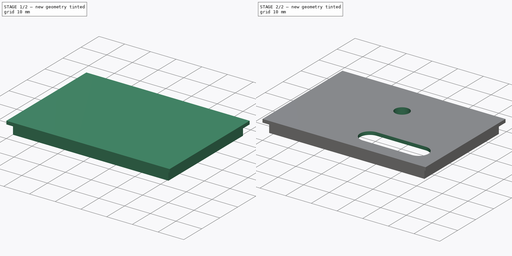
[diagram: build sequence overview — one tinted view per stage of 2, left to right]
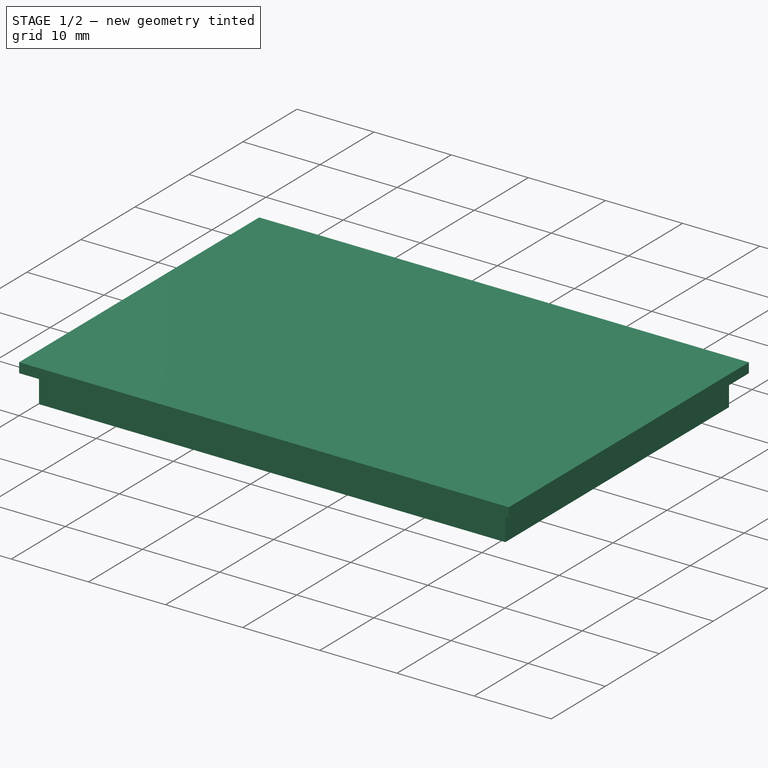
[diagram: stage 1 of 2 — iso view after this stage's code; geometry added in this stage tinted green]
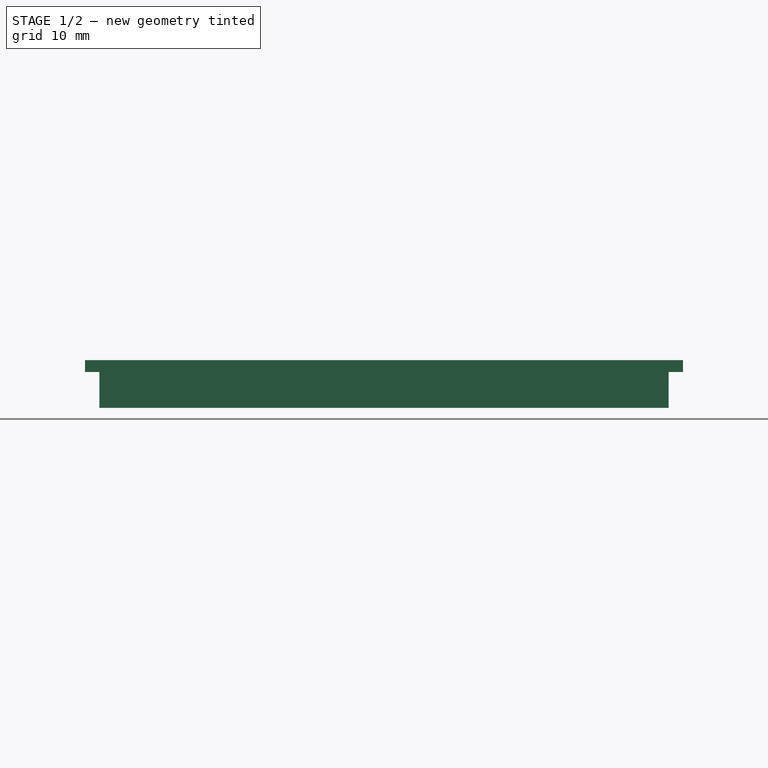
[diagram: stage 1 of 2 — front view after this stage's code; geometry added in this stage tinted green]
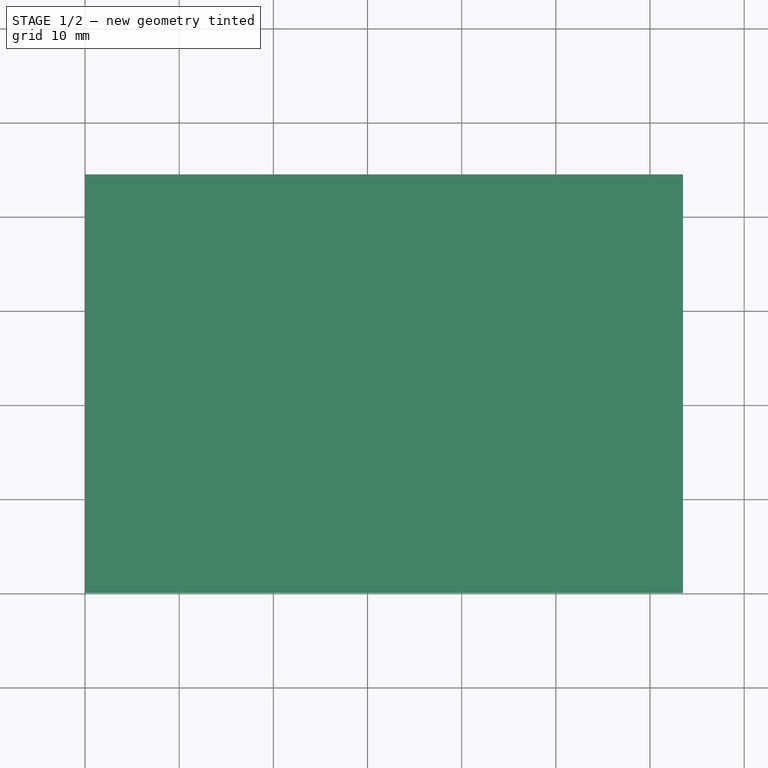
[diagram: stage 1 of 2 — top view after this stage's code; geometry added in this stage tinted green]
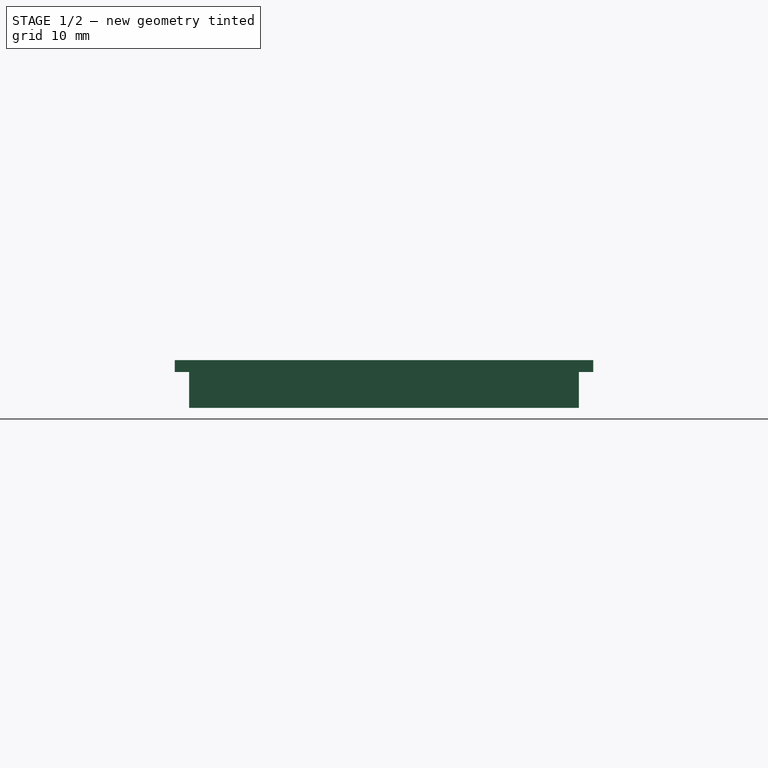
[diagram: stage 1 of 2 — right view after this stage's code; geometry added in this stage tinted green]
FCSTD DOCUMENT  (FreeCAD 0.18R4 (GitTag))
Label: BluetoothLightControlTop
License: All rights reserved
LicenseURL: http://en.wikipedia.org/wiki/All_rights_reserved
objects: Sketcher::SketchObject×4, PartDesign::Pad×3, PartDesign::Pocket×1, PartDesign::Body×1
note: 13 computed .brp shape members not serialized (recipe doc carries the construction recipe); baked Part::Feature solids carry a one-line shape summary decoded from their .brp

FEATURE [Sketcher::SketchObject] Sketch
  MapMode = 5
  Support = -> [XY_Plane]
  sketch-geometry (4):
    g0: LineSegment StartX=0 StartY=0 StartZ=0 EndX=63.5 EndY=0 EndZ=0
    g1: LineSegment StartX=63.5 StartY=0 StartZ=0 EndX=63.5 EndY=44.45 EndZ=0
    g2: LineSegment StartX=63.5 StartY=44.45 StartZ=0 EndX=0 EndY=44.45 EndZ=0
    g3: LineSegment StartX=0 StartY=44.45 StartZ=0 EndX=0 EndY=0 EndZ=0
  constraints (11):
    c: Coincident(g0,g1)
    c: Coincident(g1,g2)
    c: Coincident(g2,g3)
    c: Coincident(g3,g0)
    c: Horizontal(g0)
    c: Horizontal(g2)
    c: Vertical(g1)
    c: Vertical(g3)
    c: Coincident(g0,g-1)
    c: DistanceX(g2,g2) = 63.5
    c: DistanceY(g1,g1) = 44.45
FEATURE [PartDesign::Pad] Pad
  Length = 1.27
  Length2 = 100.076
  Profile = -> Sketch
  Type = 0
FEATURE [Sketcher::SketchObject] Sketch001
  MapMode = 5
  Placement = pos=(0,0,0) rot=(1,0,0;3.14159rad)
  Support = -> [Pad]
  sketch-geometry (8):
    g0: LineSegment StartX=1.524 StartY=-1.524 StartZ=0 EndX=61.976 EndY=-1.524 EndZ=0
    g1: LineSegment StartX=61.976 StartY=-1.524 StartZ=0 EndX=61.976 EndY=-42.926 EndZ=0
    g2: LineSegment StartX=61.976 StartY=-42.926 StartZ=0 EndX=1.524 EndY=-42.926 EndZ=0
    g3: LineSegment StartX=1.524 StartY=-42.926 StartZ=0 EndX=1.524 EndY=-1.524 EndZ=0
    g4: LineSegment StartX=2.54 StartY=-2.54 StartZ=0 EndX=60.96 EndY=-2.54 EndZ=0
    g5: LineSegment StartX=60.96 StartY=-2.54 StartZ=0 EndX=60.96 EndY=-41.91 EndZ=0
    g6: LineSegment StartX=60.96 StartY=-41.91 StartZ=0 EndX=2.54 EndY=-41.91 EndZ=0
    g7: LineSegment StartX=2.54 StartY=-41.91 StartZ=0 EndX=2.54 EndY=-2.54 EndZ=0
  constraints (24):
    c: Coincident(g0,g1)
    c: Coincident(g1,g2)
    c: Coincident(g2,g3)
    c: Coincident(g3,g0)
    c: Horizontal(g0)
    c: Horizontal(g2)
    c: Vertical(g1)
    c: Vertical(g3)
    c: DistanceY(g1,g1) = 41.402
    c: DistanceX(g0,g0) = 60.452
    c: DistanceX(g-1,g0) = 1.524
    c: DistanceY(g0,g-1) = 1.524
    c: Coincident(g4,g5)
    c: Coincident(g5,g6)
    c: Coincident(g6,g7)
    c: Coincident(g7,g4)
    c: Horizontal(g4)
    c: Horizontal(g6)
    c: Vertical(g5)
    c: Vertical(g7)
    c: DistanceY(g5,g5) = 39.37
    c: DistanceX(g4,g4) = 58.42
    c: DistanceX(g-1,g4) = 2.54
    c: DistanceY(g4,g-1) = 2.54
FEATURE [PartDesign::Pad] Pad001
  BaseFeature = -> Pad
  Length = 3.81
  Length2 = 100.076
  Profile = -> Sketch001
  Type = 0
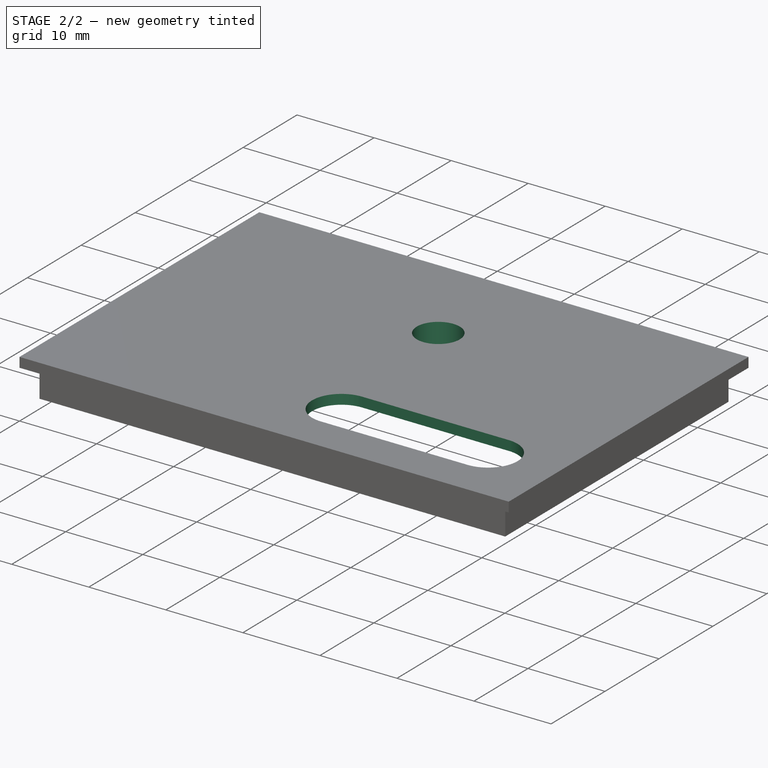
[diagram: stage 2 of 2 — iso view after this stage's code; geometry added in this stage tinted green]
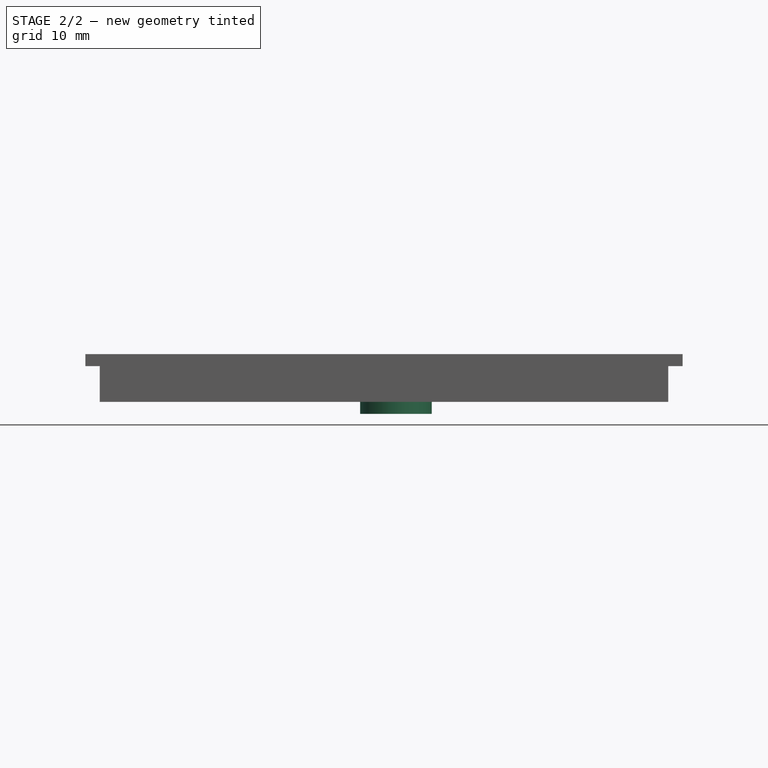
[diagram: stage 2 of 2 — front view after this stage's code; geometry added in this stage tinted green]
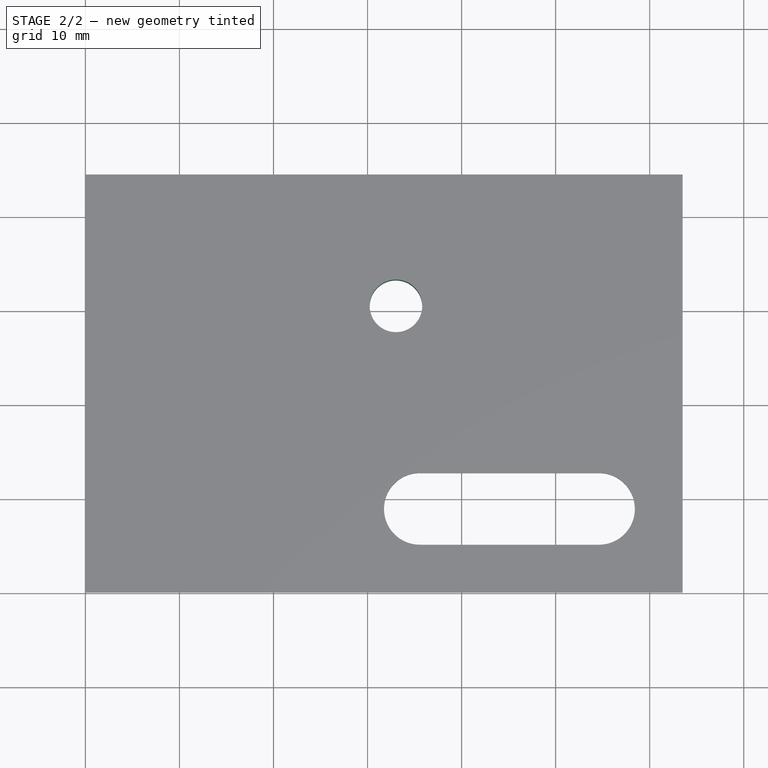
[diagram: stage 2 of 2 — top view after this stage's code; geometry added in this stage tinted green]
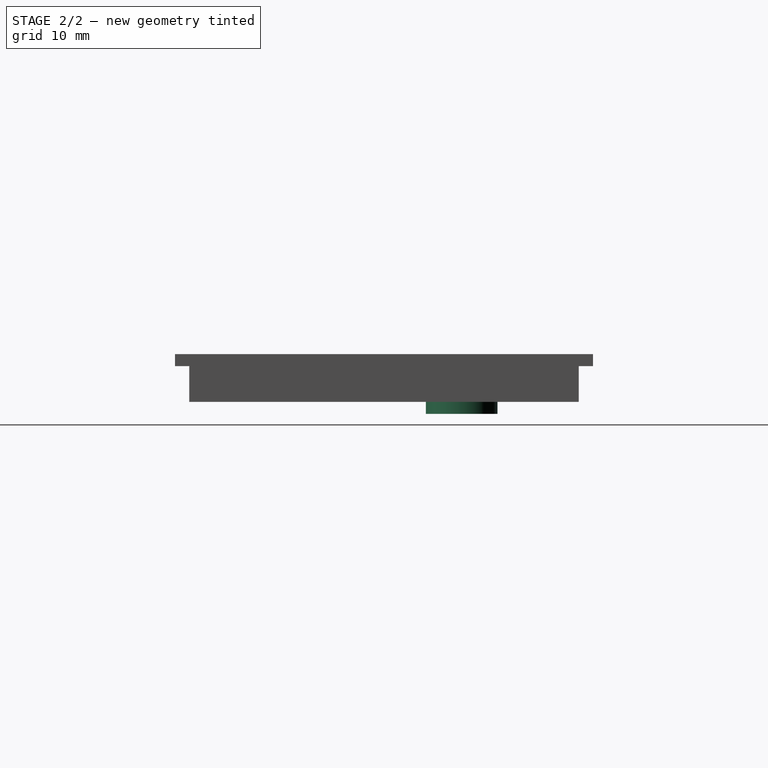
[diagram: stage 2 of 2 — right view after this stage's code; geometry added in this stage tinted green]
FEATURE [Sketcher::SketchObject] Sketch002
  MapMode = 5
  Placement = pos=(0,0,1.27) rot=(0,0,1;0rad)
  Support = -> [Pad001]
  sketch-geometry (5):
    g0: ArcOfCircle CenterX=54.61 CenterY=8.89 CenterZ=0 NormalX=0 NormalY=0 NormalZ=1 AngleXU=0 Radius=3.81 StartAngle=4.71239 EndAngle=7.85398
    g1: ArcOfCircle CenterX=35.56 CenterY=8.89 CenterZ=0 NormalX=0 NormalY=0 NormalZ=1 AngleXU=0 Radius=3.81 StartAngle=1.5708 EndAngle=4.71239
    g2: LineSegment StartX=54.61 StartY=12.7 StartZ=0 EndX=35.56 EndY=12.7 EndZ=0
    g3: LineSegment StartX=54.61 StartY=5.08 StartZ=0 EndX=35.56 EndY=5.08 EndZ=0
    g4: Circle CenterX=33.02 CenterY=30.48 CenterZ=0 NormalX=0 NormalY=0 NormalZ=1 AngleXU=0 Radius=2.794
  constraints (13):
    c: Tangent(g0,g3) = 1.5708
    c: Tangent(g0,g2) = -1.5708
    c: Tangent(g2,g1) = -1.5708
    c: Tangent(g3,g1) = 1.5708
    c: Horizontal(g2)
    c: Equal(g0,g1)
    c: Radius(g0) = 3.81
    c: DistanceX(g2,g2) = 19.05
    c: DistanceY(g-1,g1) = 8.89
    c: DistanceX(g-1,g0) = 54.61
    c: DistanceX(g-1,g4) = 33.02
    c: DistanceY(g-1,g4) = 30.48
    c: Radius(g4) = 2.794
FEATURE [PartDesign::Pocket] Pocket
  BaseFeature = -> Pad001
  Length = 5.08
  Length2 = 100.076
  Profile = -> Sketch002
  Type = 1
FEATURE [Sketcher::SketchObject] Sketch003
  MapMode = 5
  Placement = pos=(0,0,0) rot=(1,0,0;3.14159rad)
  Support = -> [Pocket]
  sketch-geometry (2):
    g0: Circle CenterX=33.02 CenterY=-30.48 CenterZ=0 NormalX=0 NormalY=0 NormalZ=1 AngleXU=0 Radius=3.81
    g1: Circle CenterX=33.02 CenterY=-30.48 CenterZ=0 NormalX=0 NormalY=0 NormalZ=1 AngleXU=0 Radius=2.794
  constraints (5):
    c: Coincident(g1,g0)
    c: Radius(g1) = 2.794
    c: Radius(g0) = 3.81
    c: DistanceX(g-1,g0) = 33.02
    c: DistanceY(g0,g-1) = 30.48
FEATURE [PartDesign::Pad] Pad002
  BaseFeature = -> Pocket
  Length = 5.08
  Length2 = 100.076
  Profile = -> Sketch003
  Type = 0
FEATURE [PartDesign::Body] Body
  Group = -> [Sketch,Pad,Sketch001,Pad001,Sketch002,Pocket,Sketch003,Pad002]
  Origin = -> Origin
  Tip = -> Pad002
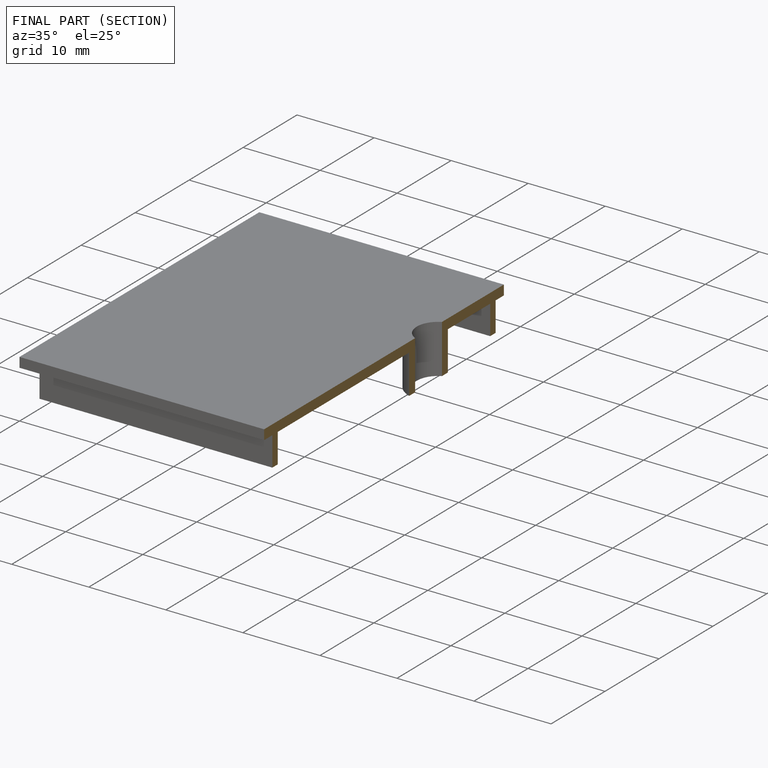
[diagram: finished part — half-section view (interior)]
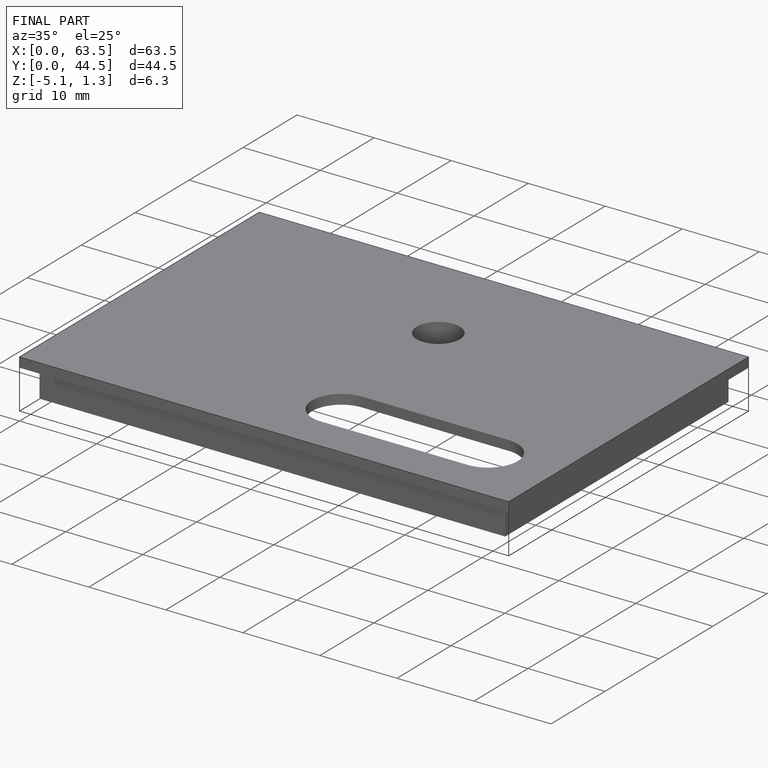
[diagram: finished part — iso view with bounding-box wireframe]
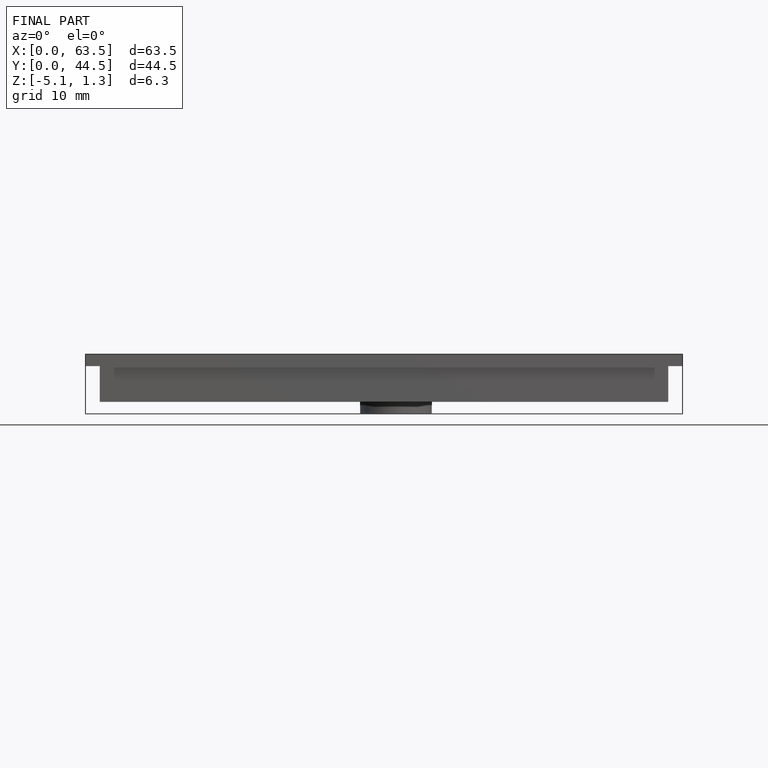
[diagram: finished part — front view with bounding-box wireframe]
